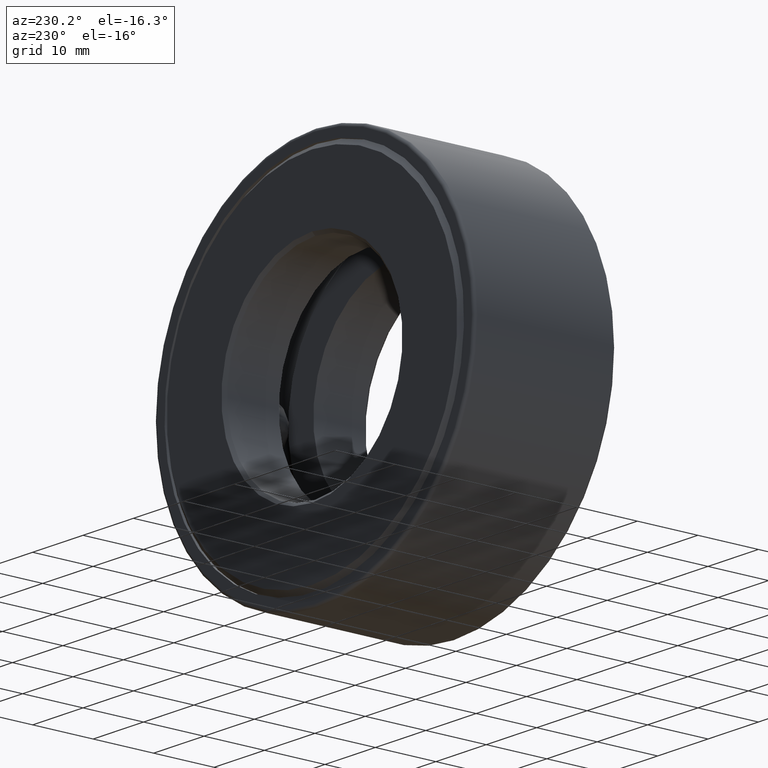
[diagram: clean part render]
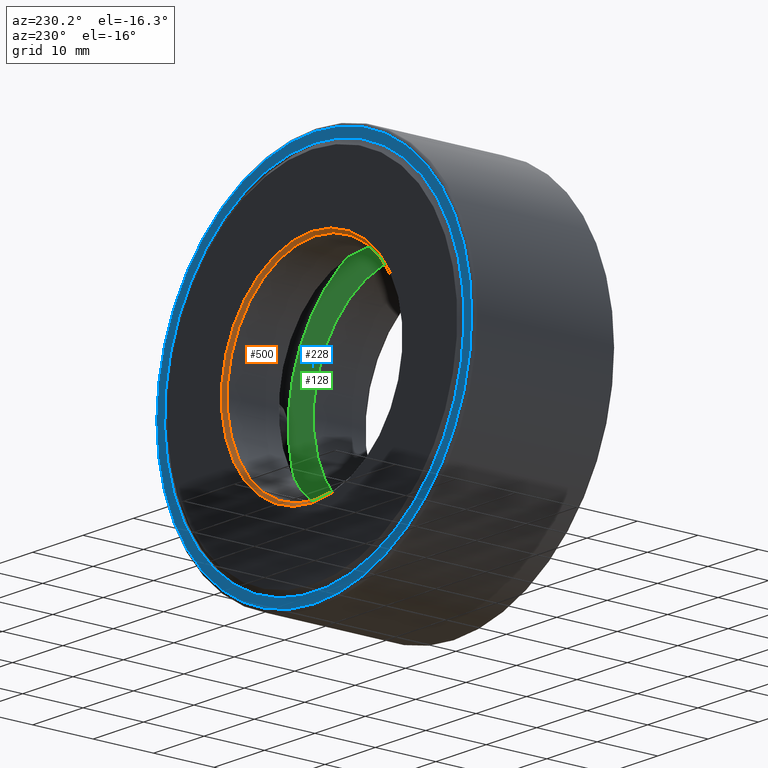
[diagram: same view with three faces highlighted in distinct colors, each labeled with its STEP entity id]
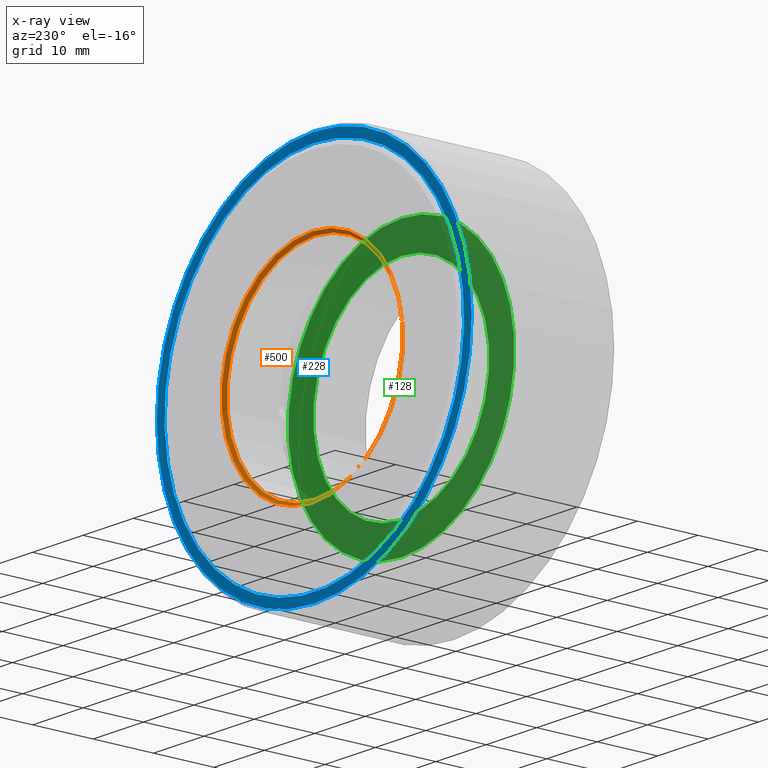
[diagram: x-ray of the same camera — body ghosted, the three highlighted faces saturated]
A machine part, auxiliary view with three faces highlighted in distinct colors.
The next image is the same camera in x-ray (body ghosted, the three faces saturated) — at least one of them is partly hidden behind the body in this view.
Their STEP definitions:

[orange] entity #500 — the highlighted conical surface has half-angle 45 deg.
#3 = CARTESIAN_POINT ( 'NONE',  ( 0.0000000000000000000, 0.9375000000000000000, 0.0000000000000000000 ) ) ;
#4 = DIRECTION ( 'NONE',  ( -0.0000000000000000000, 1.000000000000000000, -0.0000000000000000000 ) ) ;
#21 = CONICAL_SURFACE ( 'NONE', #366, 0.6875000000000001100, 0.7853981633974380600 ) ;
#37 = FACE_BOUND ( 'NONE', #379, .T. ) ;
#47 = CIRCLE ( 'NONE', #221, 0.6875000000000001100 ) ;
#104 = AXIS2_PLACEMENT_3D ( 'NONE', #3, #4, #576 ) ;
#119 = ORIENTED_EDGE ( 'NONE', *, *, #168, .T. ) ;
#158 = EDGE_LOOP ( 'NONE', ( #119 ) ) ;
#168 = EDGE_CURVE ( 'NONE', #370, #370, #330, .T. ) ;
#180 = FACE_OUTER_BOUND ( 'NONE', #158, .T. ) ;
#221 = AXIS2_PLACEMENT_3D ( 'NONE', #578, #256, #536 ) ;
#256 = DIRECTION ( 'NONE',  ( -0.0000000000000000000, 1.000000000000000000, -0.0000000000000000000 ) ) ;
#315 = DIRECTION ( 'NONE',  ( -0.0000000000000000000, 1.000000000000000000, -0.0000000000000000000 ) ) ;
#330 = CIRCLE ( 'NONE', #104, 0.7075000000000003500 ) ;
#359 = EDGE_CURVE ( 'NONE', #592, #592, #47, .T. ) ;
#366 = AXIS2_PLACEMENT_3D ( 'NONE', #504, #315, #542 ) ;
#370 = VERTEX_POINT ( 'NONE', #465 ) ;
#379 = EDGE_LOOP ( 'NONE', ( #562 ) ) ;
#461 = CARTESIAN_POINT ( 'NONE',  ( 0.0000000000000000000, 0.9174999999999994300, 0.6875000000000001100 ) ) ;
#465 = CARTESIAN_POINT ( 'NONE',  ( 0.0000000000000000000, 0.9375000000000000000, 0.7075000000000003500 ) ) ;
#500 = ADVANCED_FACE ( 'NONE', ( #180, #37 ), #21, .F. ) ;
#504 = CARTESIAN_POINT ( 'NONE',  ( 0.0000000000000000000, 0.9174999999999994300, 0.0000000000000000000 ) ) ;
#536 = DIRECTION ( 'NONE',  ( 0.0000000000000000000, 0.0000000000000000000, 1.000000000000000000 ) ) ;
#542 = DIRECTION ( 'NONE',  ( 0.0000000000000000000, 0.0000000000000000000, 1.000000000000000000 ) ) ;
#562 = ORIENTED_EDGE ( 'NONE', *, *, #359, .F. ) ;
#576 = DIRECTION ( 'NONE',  ( 0.0000000000000000000, 0.0000000000000000000, 1.000000000000000000 ) ) ;
#578 = CARTESIAN_POINT ( 'NONE',  ( 0.0000000000000000000, 0.9174999999999994300, 0.0000000000000000000 ) ) ;
#592 = VERTEX_POINT ( 'NONE', #461 ) ;

[blue] entity #228 — the highlighted planar face has unit normal (0, -1, 0).
#38 = FACE_BOUND ( 'NONE', #533, .T. ) ;
#61 = ORIENTED_EDGE ( 'NONE', *, *, #404, .T. ) ;
#75 = DIRECTION ( 'NONE',  ( -0.0000000000000000000, 1.000000000000000000, -0.0000000000000000000 ) ) ;
#120 = DIRECTION ( 'NONE',  ( 0.0000000000000000000, 0.0000000000000000000, 1.000000000000000000 ) ) ;
#145 = DIRECTION ( 'NONE',  ( 0.0000000000000000000, -1.000000000000000000, 0.0000000000000000000 ) ) ;
#163 = CARTESIAN_POINT ( 'NONE',  ( 0.0000000000000000000, 0.9224999999999998800, 0.0000000000000000000 ) ) ;
#196 = EDGE_LOOP ( 'NONE', ( #61 ) ) ;
#202 = CIRCLE ( 'NONE', #591, 1.230000000000000000 ) ;
#226 = ORIENTED_EDGE ( 'NONE', *, *, #442, .F. ) ;
#228 = ADVANCED_FACE ( 'NONE', ( #38, #477 ), #529, .F. ) ;
#328 = AXIS2_PLACEMENT_3D ( 'NONE', #569, #145, #571 ) ;
#350 = VERTEX_POINT ( 'NONE', #371 ) ;
#353 = DIRECTION ( 'NONE',  ( -0.0000000000000000000, 1.000000000000000000, -0.0000000000000000000 ) ) ;
#371 = CARTESIAN_POINT ( 'NONE',  ( 0.0000000000000000000, 0.9224999999999998800, 1.230000000000000000 ) ) ;
#395 = CIRCLE ( 'NONE', #509, 1.170000000000000200 ) ;
#404 = EDGE_CURVE ( 'NONE', #350, #350, #202, .T. ) ;
#407 = CARTESIAN_POINT ( 'NONE',  ( 0.0000000000000000000, 0.9224999999999998800, 1.170000000000000200 ) ) ;
#442 = EDGE_CURVE ( 'NONE', #567, #567, #395, .T. ) ;
#477 = FACE_OUTER_BOUND ( 'NONE', #196, .T. ) ;
#487 = DIRECTION ( 'NONE',  ( 0.0000000000000000000, 0.0000000000000000000, 1.000000000000000000 ) ) ;
#509 = AXIS2_PLACEMENT_3D ( 'NONE', #589, #75, #120 ) ;
#529 = PLANE ( 'NONE',  #328 ) ;
#533 = EDGE_LOOP ( 'NONE', ( #226 ) ) ;
#567 = VERTEX_POINT ( 'NONE', #407 ) ;
#569 = CARTESIAN_POINT ( 'NONE',  ( 0.0000000000000000000, 0.9224999999999998800, 0.0000000000000000000 ) ) ;
#571 = DIRECTION ( 'NONE',  ( 0.0000000000000000000, -0.0000000000000000000, -1.000000000000000000 ) ) ;
#589 = CARTESIAN_POINT ( 'NONE',  ( 0.0000000000000000000, 0.9224999999999998800, 0.0000000000000000000 ) ) ;
#591 = AXIS2_PLACEMENT_3D ( 'NONE', #163, #353, #487 ) ;

[green] entity #128 — the highlighted planar face has unit normal (0, -1, 0).
#9 = AXIS2_PLACEMENT_3D ( 'NONE', #467, #472, #430 ) ;
#53 = FACE_OUTER_BOUND ( 'NONE', #600, .T. ) ;
#68 = AXIS2_PLACEMENT_3D ( 'NONE', #400, #498, #222 ) ;
#123 = DIRECTION ( 'NONE',  ( -0.0000000000000000000, 1.000000000000000000, -0.0000000000000000000 ) ) ;
#126 = ORIENTED_EDGE ( 'NONE', *, *, #586, .F. ) ;
#128 = ADVANCED_FACE ( 'NONE', ( #249, #53 ), #560, .F. ) ;
#179 = CARTESIAN_POINT ( 'NONE',  ( 0.0000000000000000000, 0.3562500000000000700, 0.6875000000000001100 ) ) ;
#213 = EDGE_LOOP ( 'NONE', ( #126 ) ) ;
#222 = DIRECTION ( 'NONE',  ( 0.0000000000000000000, 0.0000000000000000000, 1.000000000000000000 ) ) ;
#225 = VERTEX_POINT ( 'NONE', #555 ) ;
#249 = FACE_BOUND ( 'NONE', #213, .T. ) ;
#400 = CARTESIAN_POINT ( 'NONE',  ( 0.0000000000000000000, 0.3562500000000000700, 0.0000000000000000000 ) ) ;
#430 = DIRECTION ( 'NONE',  ( 0.0000000000000000000, -0.0000000000000000000, -1.000000000000000000 ) ) ;
#467 = CARTESIAN_POINT ( 'NONE',  ( 0.0000000000000000000, 0.3562500000000000700, 0.0000000000000000000 ) ) ;
#472 = DIRECTION ( 'NONE',  ( 0.0000000000000000000, -1.000000000000000000, 0.0000000000000000000 ) ) ;
#490 = CIRCLE ( 'NONE', #553, 0.6875000000000001100 ) ;
#491 = DIRECTION ( 'NONE',  ( 0.0000000000000000000, 0.0000000000000000000, 1.000000000000000000 ) ) ;
#497 = CARTESIAN_POINT ( 'NONE',  ( 0.0000000000000000000, 0.3562500000000000700, 0.0000000000000000000 ) ) ;
#498 = DIRECTION ( 'NONE',  ( -0.0000000000000000000, 1.000000000000000000, -0.0000000000000000000 ) ) ;
#499 = CIRCLE ( 'NONE', #68, 0.8835000000000000600 ) ;
#526 = ORIENTED_EDGE ( 'NONE', *, *, #603, .T. ) ;
#553 = AXIS2_PLACEMENT_3D ( 'NONE', #497, #123, #491 ) ;
#555 = CARTESIAN_POINT ( 'NONE',  ( 0.0000000000000000000, 0.3562500000000000700, 0.8835000000000000600 ) ) ;
#560 = PLANE ( 'NONE',  #9 ) ;
#586 = EDGE_CURVE ( 'NONE', #604, #604, #490, .T. ) ;
#600 = EDGE_LOOP ( 'NONE', ( #526 ) ) ;
#603 = EDGE_CURVE ( 'NONE', #225, #225, #499, .T. ) ;
#604 = VERTEX_POINT ( 'NONE', #179 ) ;